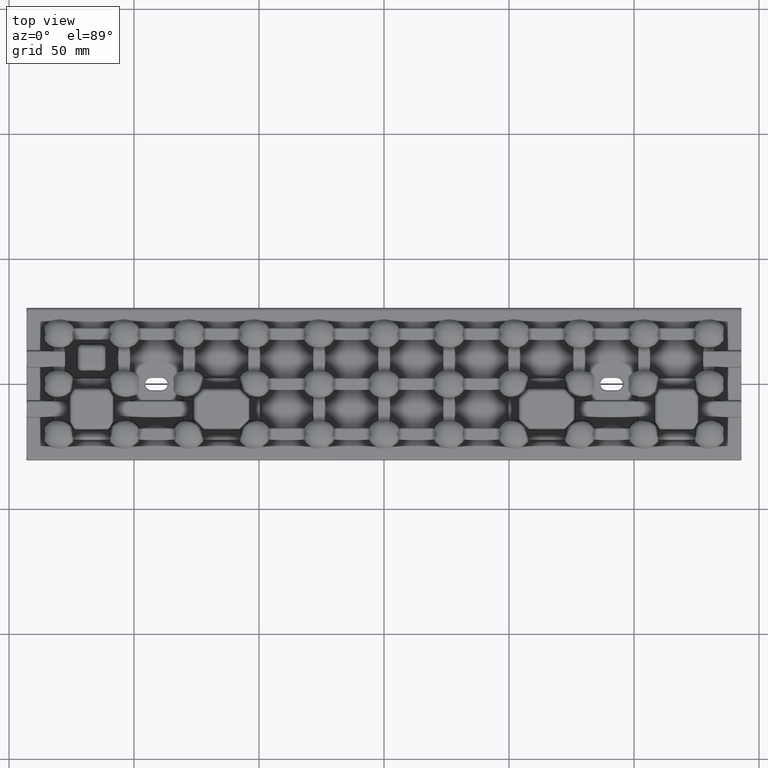
[diagram: clean part render]
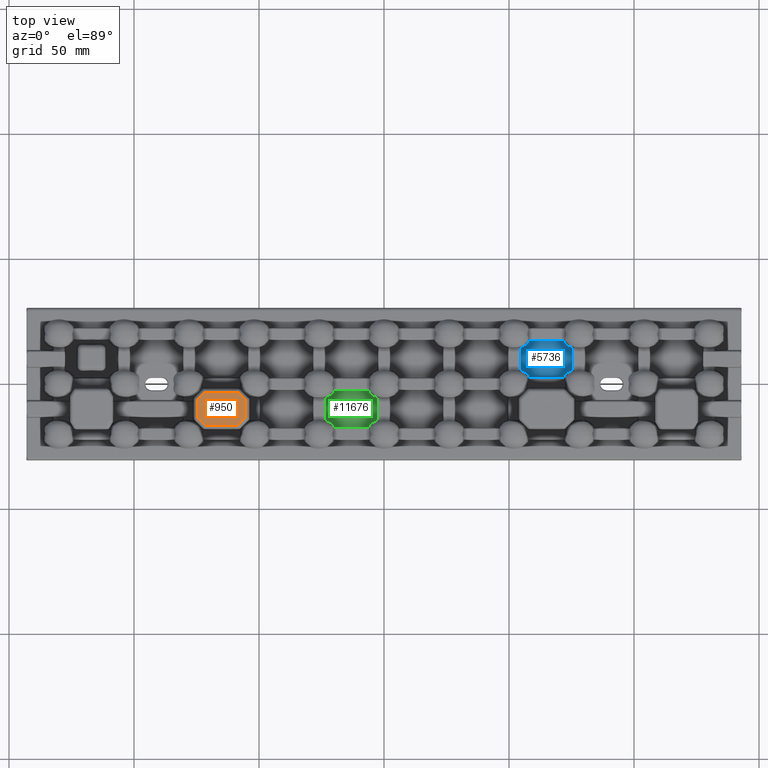
[diagram: same view with three faces highlighted in distinct colors, each labeled with its STEP entity id]
A machine part, top view with three faces highlighted in distinct colors.
Their STEP definitions:

[orange] entity #950 — the highlighted planar face has unit normal (0, 0, -1).
#950 = ADVANCED_FACE ( 'NONE', ( #42815 ), #17824, .F. ) ;
#2049 = VERTEX_POINT ( 'NONE', #28441 ) ;
#5314 = AXIS2_PLACEMENT_3D ( 'NONE', #14093, #11656, #11403 ) ;
#6236 = CARTESIAN_POINT ( 'NONE',  ( -74.54232708441645600, -5.875331438828238700, 6.799999999999999800 ) ) ;
#11403 = DIRECTION ( 'NONE',  ( 1.000000000000000000, 0.0000000000000000000, 0.0000000000000000000 ) ) ;
#11656 = DIRECTION ( 'NONE',  ( 0.0000000000000000000, 0.0000000000000000000, -1.000000000000000000 ) ) ;
#13331 = VECTOR ( 'NONE', #18739, 1000.000000000000000 ) ;
#14093 = CARTESIAN_POINT ( 'NONE',  ( 0.0000000000000000000, 0.0000000000000000000, 6.799999999999999800 ) ) ;
#14114 = LINE ( 'NONE', #33924, #25705 ) ;
#15663 = EDGE_CURVE ( 'NONE', #42154, #52542, #29440, .T. ) ;
#15956 = EDGE_CURVE ( 'NONE', #56035, #42154, #62368, .T. ) ;
#16195 = EDGE_CURVE ( 'NONE', #65048, #56035, #58824, .T. ) ;
#16476 = EDGE_CURVE ( 'NONE', #55022, #65048, #32904, .T. ) ;
#16637 = ORIENTED_EDGE ( 'NONE', *, *, #15663, .F. ) ;
#16714 = EDGE_CURVE ( 'NONE', #72476, #55022, #56081, .T. ) ;
#17045 = EDGE_CURVE ( 'NONE', #34947, #72476, #58758, .T. ) ;
#17340 = EDGE_CURVE ( 'NONE', #2049, #34947, #32833, .T. ) ;
#17575 = CARTESIAN_POINT ( 'NONE',  ( -74.91097697223750600, -13.23466900222692600, 6.799999999999999800 ) ) ;
#17588 = EDGE_CURVE ( 'NONE', #52542, #2049, #14114, .T. ) ;
#17824 = PLANE ( 'NONE',  #5314 ) ;
#18739 = DIRECTION ( 'NONE',  ( -1.000000000000000000, -0.0000000000000000000, -0.0000000000000000000 ) ) ;
#23349 = DIRECTION ( 'NONE',  ( -0.7071067811865459100, 0.7071067811865491300, -0.0000000000000000000 ) ) ;
#25705 = VECTOR ( 'NONE', #39661, 1000.000000000000100 ) ;
#25775 = VECTOR ( 'NONE', #65746, 1000.000000000000000 ) ;
#26052 = DIRECTION ( 'NONE',  ( 1.000000000000000000, 2.845181998947741900E-017, -0.0000000000000000000 ) ) ;
#28441 = CARTESIAN_POINT ( 'NONE',  ( -71.60331889004785900, -3.457672915583494900, 6.799999999999999800 ) ) ;
#29112 = CARTESIAN_POINT ( 'NONE',  ( -74.54232708441645600, -13.60331889004798000, 6.799999999999999800 ) ) ;
#29440 = LINE ( 'NONE', #6236, #73068 ) ;
#30837 = CARTESIAN_POINT ( 'NONE',  ( -58.39668110995199900, -3.457672915583494400, 6.799999999999999800 ) ) ;
#31075 = ORIENTED_EDGE ( 'NONE', *, *, #17045, .F. ) ;
#32833 = LINE ( 'NONE', #37480, #48037 ) ;
#32904 = LINE ( 'NONE', #66800, #61460 ) ;
#33703 = ORIENTED_EDGE ( 'NONE', *, *, #17588, .F. ) ;
#33924 = CARTESIAN_POINT ( 'NONE',  ( -71.23466900222682300, -3.089023027762459500, 6.799999999999999800 ) ) ;
#34947 = VERTEX_POINT ( 'NONE', #30837 ) ;
#37480 = CARTESIAN_POINT ( 'NONE',  ( -57.87533143882816200, -3.457672915583494400, 6.799999999999999800 ) ) ;
#39661 = DIRECTION ( 'NONE',  ( 0.7071067811865499000, 0.7071067811865452400, -0.0000000000000000000 ) ) ;
#42154 = VERTEX_POINT ( 'NONE', #29112 ) ;
#42379 = CARTESIAN_POINT ( 'NONE',  ( -74.54232708441645600, -6.396681109952073300, 6.799999999999999800 ) ) ;
#42815 = FACE_OUTER_BOUND ( 'NONE', #50531, .T. ) ;
#43577 = VECTOR ( 'NONE', #68397, 1000.000000000000200 ) ;
#44415 = ORIENTED_EDGE ( 'NONE', *, *, #16714, .F. ) ;
#47079 = ORIENTED_EDGE ( 'NONE', *, *, #16476, .F. ) ;
#47226 = VECTOR ( 'NONE', #23349, 1000.000000000000100 ) ;
#48037 = VECTOR ( 'NONE', #26052, 1000.000000000000000 ) ;
#50531 = EDGE_LOOP ( 'NONE', ( #16637, #52390, #56849, #47079, #44415, #31075, #51594, #33703 ) ) ;
#51168 = CARTESIAN_POINT ( 'NONE',  ( -71.60331889004788800, -16.54232708441655900, 6.799999999999999800 ) ) ;
#51191 = CARTESIAN_POINT ( 'NONE',  ( -72.12466856117171700, -16.54232708441655900, 6.799999999999999800 ) ) ;
#51594 = ORIENTED_EDGE ( 'NONE', *, *, #17340, .F. ) ;
#52184 = CARTESIAN_POINT ( 'NONE',  ( -55.45767291558339500, -6.396681109952082200, 6.799999999999999800 ) ) ;
#52390 = ORIENTED_EDGE ( 'NONE', *, *, #15956, .F. ) ;
#52542 = VERTEX_POINT ( 'NONE', #42379 ) ;
#54301 = CARTESIAN_POINT ( 'NONE',  ( -55.45767291558339500, -14.12466856117179500, 6.799999999999999800 ) ) ;
#55022 = VERTEX_POINT ( 'NONE', #68371 ) ;
#55354 = DIRECTION ( 'NONE',  ( -0.7071067811865461300, -0.7071067811865489100, -0.0000000000000000000 ) ) ;
#56035 = VERTEX_POINT ( 'NONE', #51168 ) ;
#56081 = LINE ( 'NONE', #54301, #25775 ) ;
#56849 = ORIENTED_EDGE ( 'NONE', *, *, #16195, .F. ) ;
#57562 = DIRECTION ( 'NONE',  ( -0.0000000000000000000, 1.000000000000000000, -0.0000000000000000000 ) ) ;
#58758 = LINE ( 'NONE', #62714, #43577 ) ;
#58824 = LINE ( 'NONE', #51191, #13331 ) ;
#61460 = VECTOR ( 'NONE', #55354, 1000.000000000000100 ) ;
#62368 = LINE ( 'NONE', #17575, #47226 ) ;
#62714 = CARTESIAN_POINT ( 'NONE',  ( -55.08902302776235200, -6.765330997773125100, 6.799999999999999800 ) ) ;
#65048 = VERTEX_POINT ( 'NONE', #65216 ) ;
#65216 = CARTESIAN_POINT ( 'NONE',  ( -58.39668110995197700, -16.54232708441655900, 6.799999999999999800 ) ) ;
#65746 = DIRECTION ( 'NONE',  ( -0.0000000000000000000, -1.000000000000000000, -0.0000000000000000000 ) ) ;
#66800 = CARTESIAN_POINT ( 'NONE',  ( -58.76533099777302000, -16.91097697223760600, 6.799999999999999800 ) ) ;
#68371 = CARTESIAN_POINT ( 'NONE',  ( -55.45767291558339500, -13.60331889004796200, 6.799999999999999800 ) ) ;
#68397 = DIRECTION ( 'NONE',  ( 0.7071067811865494600, -0.7071067811865455700, -0.0000000000000000000 ) ) ;
#72476 = VERTEX_POINT ( 'NONE', #52184 ) ;
#73068 = VECTOR ( 'NONE', #57562, 1000.000000000000000 ) ;

[blue] entity #5736 — the highlighted planar face has unit normal (-0, 0, 1).
#2828 = CARTESIAN_POINT ( 'NONE',  ( 57.79501201246347400, 16.58190241218923300, 1.999999999999996200 ) ) ;
#2876 = B_SPLINE_CURVE_WITH_KNOTS ( 'NONE', 3,
 ( #49432, #43693, #48704, #15280, #55148, #20983, #60904, #26739, #66597, #32470, #72335, #38162 ),
 .UNSPECIFIED., .F., .F.,
 ( 4, 2, 2, 2, 2, 4 ),
 ( 8.673617379884035500E-019, 0.0005610143110296260800, 0.001122028622059251300, 0.002244057244118502600, 0.003366085866177753700, 0.004488114488237005200 ),
 .UNSPECIFIED. ) ;
#3063 = CARTESIAN_POINT ( 'NONE',  ( 74.90037997864989400, 5.346642629162636800, 1.999999999999999600 ) ) ;
#3302 = CARTESIAN_POINT ( 'NONE',  ( 71.93665489542193800, 2.921272174014335000, 1.999999999999999600 ) ) ;
#3447 = CARTESIAN_POINT ( 'NONE',  ( 72.54772348950085400, 16.14509560246113300, 2.000000000000021300 ) ) ;
#5736 = ADVANCED_FACE ( 'NONE', ( #69156 ), #36408, .T. ) ;
#6285 = ORIENTED_EDGE ( 'NONE', *, *, #27910, .T. ) ;
#7150 = VECTOR ( 'NONE', #38077, 1000.000000000000000 ) ;
#8273 = CARTESIAN_POINT ( 'NONE',  ( 55.09960658913112800, 14.65335309428692100, 1.999999999999999600 ) ) ;
#8518 = CARTESIAN_POINT ( 'NONE',  ( 58.06336189217307000, 17.07877684787494500, 2.000000000000001800 ) ) ;
#8744 = CARTESIAN_POINT ( 'NONE',  ( 74.55362577035887700, 5.210396475648687800, 2.000000000000003600 ) ) ;
#9160 = CARTESIAN_POINT ( 'NONE',  ( 72.95393234875425000, 15.75530069695253000, 2.000000000000604400 ) ) ;
#9649 = CARTESIAN_POINT ( 'NONE',  ( 71.87528341715064100, 17.25857780629788300, 2.000000000000000000 ) ) ;
#10721 = LINE ( 'NONE', #26656, #7150 ) ;
#11557 = VECTOR ( 'NONE', #42204, 1000.000000000000000 ) ;
#14473 = CARTESIAN_POINT ( 'NONE',  ( 73.88620459317856200, 4.887762336800744100, 2.000000000000003100 ) ) ;
#14867 = CARTESIAN_POINT ( 'NONE',  ( 73.55062361644014900, 15.30768202563243600, 1.999999999999999100 ) ) ;
#15280 = CARTESIAN_POINT ( 'NONE',  ( 57.79711260354869800, 3.414774147119526800, 1.999999999999997800 ) ) ;
#16033 = ORIENTED_EDGE ( 'NONE', *, *, #27581, .F. ) ;
#16864 = DIRECTION ( 'NONE',  ( 0.0000000000000000000, 1.000000000000000000, -0.0000000000000000000 ) ) ;
#17447 = CARTESIAN_POINT ( 'NONE',  ( 54.74142219370168000, 14.53910680610567700, 2.000000000000000000 ) ) ;
#17830 = AXIS2_PLACEMENT_3D ( 'NONE', #41196, #35421, #34666 ) ;
#18753 = ORIENTED_EDGE ( 'NONE', *, *, #28113, .F. ) ;
#19685 = CARTESIAN_POINT ( 'NONE',  ( 56.11403311489184600, 15.11236120509380700, 2.000000000000001300 ) ) ;
#20148 = CARTESIAN_POINT ( 'NONE',  ( 73.11062102002293300, 4.371657058148595200, 2.000000000000000000 ) ) ;
#20372 = LINE ( 'NONE', #47561, #65099 ) ;
#20560 = CARTESIAN_POINT ( 'NONE',  ( 74.55163707640313900, 14.79023344848447900, 2.000000000000000000 ) ) ;
#20983 = CARTESIAN_POINT ( 'NONE',  ( 57.32786717274973400, 4.004861593216120700, 2.000000000000014200 ) ) ;
#21375 = VERTEX_POINT ( 'NONE', #17447 ) ;
#23128 = ORIENTED_EDGE ( 'NONE', *, *, #26276, .F. ) ;
#24762 = CARTESIAN_POINT ( 'NONE',  ( 58.12471664366866300, 17.25857780629786800, 2.000000000000000000 ) ) ;
#25448 = CARTESIAN_POINT ( 'NONE',  ( 56.89008342987786200, 15.62888595811224400, 2.000000000000000000 ) ) ;
#25936 = CARTESIAN_POINT ( 'NONE',  ( 72.68537160262494000, 3.998077177243522000, 1.999999999999600500 ) ) ;
#26276 = EDGE_CURVE ( 'NONE', #63269, #41577, #65422, .T. ) ;
#26339 = CARTESIAN_POINT ( 'NONE',  ( 75.25857780629814900, 14.53910680023599900, 2.000000000000000000 ) ) ;
#26604 = EDGE_CURVE ( 'NONE', #63269, #67445, #49967, .T. ) ;
#26656 = CARTESIAN_POINT ( 'NONE',  ( 73.61223291411209900, 2.741422193701760900, 2.000000000000000000 ) ) ;
#26739 = CARTESIAN_POINT ( 'NONE',  ( 56.44316856757350100, 4.696417050458721900, 1.999999999999981300 ) ) ;
#26940 = EDGE_CURVE ( 'NONE', #26996, #67445, #35705, .T. ) ;
#26996 = VERTEX_POINT ( 'NONE', #9649 ) ;
#27253 = EDGE_CURVE ( 'NONE', #26996, #72596, #41880, .T. ) ;
#27581 = EDGE_CURVE ( 'NONE', #21375, #72596, #66767, .T. ) ;
#27910 = EDGE_CURVE ( 'NONE', #21375, #46031, #20372, .T. ) ;
#28113 = EDGE_CURVE ( 'NONE', #68467, #46031, #2876, .T. ) ;
#28447 = EDGE_CURVE ( 'NONE', #68467, #41577, #10721, .T. ) ;
#29459 = ORIENTED_EDGE ( 'NONE', *, *, #27253, .T. ) ;
#31193 = CARTESIAN_POINT ( 'NONE',  ( 57.31500584046109700, 16.00230770594036800, 1.999999999999085000 ) ) ;
#31679 = CARTESIAN_POINT ( 'NONE',  ( 72.31559820724579900, 3.574081393938444600, 2.000000000000089700 ) ) ;
#32470 = CARTESIAN_POINT ( 'NONE',  ( 55.44716140462983800, 5.210168295954024300, 1.999999999999998700 ) ) ;
#33802 = CARTESIAN_POINT ( 'NONE',  ( 75.25857780629814900, 15.61223291411225100, 2.000000000000000000 ) ) ;
#34593 = EDGE_LOOP ( 'NONE', ( #23128, #67694, #39173, #29459, #16033, #6285, #18753, #67763 ) ) ;
#34666 = DIRECTION ( 'NONE',  ( 1.000000000000000000, 0.0000000000000000000, 0.0000000000000000000 ) ) ;
#34789 = CARTESIAN_POINT ( 'NONE',  ( 58.12471664366873400, 2.741422193701762200, 2.000000000000000000 ) ) ;
#35421 = DIRECTION ( 'NONE',  ( -0.0000000000000000000, 0.0000000000000000000, 1.000000000000000000 ) ) ;
#35705 = B_SPLINE_CURVE_WITH_KNOTS ( 'NONE', 3,
 ( #48532, #37522, #71661, #3447, #43276, #9160, #49014, #14867, #54755, #20560, #60496, #26339 ),
 .UNSPECIFIED., .F., .F.,
 ( 4, 2, 2, 2, 2, 4 ),
 ( 3.469446951953614200E-018, 0.001114944841971943900, 0.001672417262957927200, 0.002229889683943910700, 0.003344834525915880800, 0.004459779367887850900 ),
 .UNSPECIFIED. ) ;
#36408 = PLANE ( 'NONE',  #17830 ) ;
#36877 = CARTESIAN_POINT ( 'NONE',  ( 57.68470931873402200, 16.42632786501944500, 2.000000000000066600 ) ) ;
#37362 = CARTESIAN_POINT ( 'NONE',  ( 72.01599760934018900, 3.092145851144529400, 1.999999999999998700 ) ) ;
#37522 = CARTESIAN_POINT ( 'NONE',  ( 71.99803419202373800, 16.89885493394610800, 2.000000000000000000 ) ) ;
#38077 = DIRECTION ( 'NONE',  ( 1.000000000000000000, -8.260587980841932600E-017, 0.0000000000000000000 ) ) ;
#38162 = CARTESIAN_POINT ( 'NONE',  ( 54.74142219370168000, 5.460893193894282400, 2.000000000000000000 ) ) ;
#39173 = ORIENTED_EDGE ( 'NONE', *, *, #26940, .F. ) ;
#41196 = CARTESIAN_POINT ( 'NONE',  ( 0.0000000000000000000, 0.0000000000000000000, 2.000000000000000000 ) ) ;
#41577 = VERTEX_POINT ( 'NONE', #57873 ) ;
#41880 = LINE ( 'NONE', #59187, #11557 ) ;
#42204 = DIRECTION ( 'NONE',  ( -1.000000000000000000, -1.156482317317870500E-015, 0.0000000000000000000 ) ) ;
#42584 = CARTESIAN_POINT ( 'NONE',  ( 75.25857780629814900, 5.460893199763967600, 2.000000000000000000 ) ) ;
#42636 = CARTESIAN_POINT ( 'NONE',  ( 57.98407401550316800, 16.90802450039241800, 1.999999999999995300 ) ) ;
#43123 = CARTESIAN_POINT ( 'NONE',  ( 71.87528341715052700, 2.741422193701760900, 2.000000000000000000 ) ) ;
#43276 = CARTESIAN_POINT ( 'NONE',  ( 72.67899717475180000, 16.00835536796487100, 2.000000000000604800 ) ) ;
#43693 = CARTESIAN_POINT ( 'NONE',  ( 58.06343828802858600, 2.920999273000661300, 2.000000000000001300 ) ) ;
#46031 = VERTEX_POINT ( 'NONE', #57913 ) ;
#47561 = CARTESIAN_POINT ( 'NONE',  ( 54.74142219370168000, 4.387767085887761100, 2.000000000000000000 ) ) ;
#48143 = CARTESIAN_POINT ( 'NONE',  ( 54.74142219370168000, 14.53910680610567700, 2.000000000000000000 ) ) ;
#48379 = CARTESIAN_POINT ( 'NONE',  ( 58.12471664366866300, 17.25857780629786800, 2.000000000000000000 ) ) ;
#48532 = CARTESIAN_POINT ( 'NONE',  ( 71.87528341715064100, 17.25857780629788300, 2.000000000000000000 ) ) ;
#48617 = CARTESIAN_POINT ( 'NONE',  ( 75.25857780629814900, 5.460893199763967600, 2.000000000000000000 ) ) ;
#48704 = CARTESIAN_POINT ( 'NONE',  ( 57.98449328760512600, 3.090948249939440700, 1.999999999999998700 ) ) ;
#49014 = CARTESIAN_POINT ( 'NONE',  ( 73.09860470962300400, 15.63777386931147000, 1.999999999999998200 ) ) ;
#49432 = CARTESIAN_POINT ( 'NONE',  ( 58.12471664366873400, 2.741422193701762200, 2.000000000000000000 ) ) ;
#49967 = LINE ( 'NONE', #33802, #53537 ) ;
#53537 = VECTOR ( 'NONE', #16864, 1000.000000000000000 ) ;
#53846 = CARTESIAN_POINT ( 'NONE',  ( 55.44640795026975900, 14.78961119562334800, 2.000000000000001300 ) ) ;
#54340 = CARTESIAN_POINT ( 'NONE',  ( 73.56537355590028000, 4.701689704480576100, 1.999999999999999600 ) ) ;
#54755 = CARTESIAN_POINT ( 'NONE',  ( 73.87780439658136800, 15.11663491878729500, 2.000000000000000400 ) ) ;
#55148 = CARTESIAN_POINT ( 'NONE',  ( 57.68766890327619000, 3.569745612315535800, 2.000000000000013800 ) ) ;
#57873 = CARTESIAN_POINT ( 'NONE',  ( 71.87528341715052700, 2.741422193701760900, 2.000000000000000000 ) ) ;
#57913 = CARTESIAN_POINT ( 'NONE',  ( 54.74142219370168000, 5.460893193894282400, 2.000000000000000000 ) ) ;
#59187 = CARTESIAN_POINT ( 'NONE',  ( 56.38776708588749600, 17.25857780629786500, 2.000000000000000000 ) ) ;
#59624 = CARTESIAN_POINT ( 'NONE',  ( 56.43502197326501600, 15.29853394021126300, 1.999999999999999600 ) ) ;
#59977 = CARTESIAN_POINT ( 'NONE',  ( 75.25857780629814900, 14.53910680023599900, 2.000000000000000000 ) ) ;
#60087 = CARTESIAN_POINT ( 'NONE',  ( 72.96272174898999200, 4.252191948901840500, 1.999999999999600500 ) ) ;
#60496 = CARTESIAN_POINT ( 'NONE',  ( 74.90016230161610600, 14.65342680097733000, 1.999999999999999600 ) ) ;
#60904 = CARTESIAN_POINT ( 'NONE',  ( 57.05017700651637100, 4.254005156543654700, 1.999999999999981300 ) ) ;
#63269 = VERTEX_POINT ( 'NONE', #42584 ) ;
#65099 = VECTOR ( 'NONE', #70446, 1000.000000000000000 ) ;
#65298 = CARTESIAN_POINT ( 'NONE',  ( 57.03792449826416800, 15.74836117042492300, 1.999999999999085400 ) ) ;
#65422 = B_SPLINE_CURVE_WITH_KNOTS ( 'NONE', 3,
 ( #48617, #3063, #8744, #14473, #54340, #20148, #60087, #25936, #65779, #31679, #71509, #37362, #3302, #43123 ),
 .UNSPECIFIED., .F., .F.,
 ( 4, 2, 2, 2, 2, 2, 4 ),
 ( 1.592264493058081600E-017, 0.001111486230891782500, 0.002222972461783549500, 0.002778715577229432800, 0.003334458692675316200, 0.003890201808121199500, 0.004445944923567082500 ),
 .UNSPECIFIED. ) ;
#65779 = CARTESIAN_POINT ( 'NONE',  ( 72.55524195587833000, 3.863107754414373500, 2.000000000000090200 ) ) ;
#66597 = CARTESIAN_POINT ( 'NONE',  ( 56.11778976680386000, 4.885678013079544100, 1.999999999999998700 ) ) ;
#66767 = B_SPLINE_CURVE_WITH_KNOTS ( 'NONE', 3,
 ( #48143, #8273, #53846, #19685, #59624, #25448, #65298, #31193, #71014, #36877, #2828, #42636, #8518, #48379 ),
 .UNSPECIFIED., .F., .F.,
 ( 4, 2, 2, 2, 2, 2, 4 ),
 ( 0.0000000000000000000, 0.001111915370787457800, 0.002223830741574915600, 0.002779788426968644500, 0.003335746112362373400, 0.003891703797756102300, 0.004447661483149831200 ),
 .UNSPECIFIED. ) ;
#67445 = VERTEX_POINT ( 'NONE', #59977 ) ;
#67694 = ORIENTED_EDGE ( 'NONE', *, *, #26604, .T. ) ;
#67763 = ORIENTED_EDGE ( 'NONE', *, *, #28447, .T. ) ;
#68467 = VERTEX_POINT ( 'NONE', #34789 ) ;
#69156 = FACE_OUTER_BOUND ( 'NONE', #34593, .T. ) ;
#70446 = DIRECTION ( 'NONE',  ( 0.0000000000000000000, -1.000000000000000000, 0.0000000000000000000 ) ) ;
#71014 = CARTESIAN_POINT ( 'NONE',  ( 57.44507333174973200, 16.13723412517454400, 2.000000000000066600 ) ) ;
#71509 = CARTESIAN_POINT ( 'NONE',  ( 72.20530534545021300, 3.418597923065645400, 1.999999999999998700 ) ) ;
#71661 = CARTESIAN_POINT ( 'NONE',  ( 72.18921699528685600, 16.58015194439517300, 2.000000000000021300 ) ) ;
#72335 = CARTESIAN_POINT ( 'NONE',  ( 55.09958599592879800, 5.346653474108982200, 1.999999999999999600 ) ) ;
#72596 = VERTEX_POINT ( 'NONE', #24762 ) ;

[green] entity #11676 — the highlighted planar face has unit normal (0, 0, 1).
#330 = FACE_OUTER_BOUND ( 'NONE', #69805, .T. ) ;
#334 = VERTEX_POINT ( 'NONE', #36562 ) ;
#398 = CARTESIAN_POINT ( 'NONE',  ( 0.0000000000000000000, 0.0000000000000000000, 2.000000000000000000 ) ) ;
#1146 = B_SPLINE_CURVE_WITH_KNOTS ( 'NONE', 3,
 ( #38448, #15549, #10091, #49959, #15787, #55676, #21517, #61418, #27269, #67106, #32975, #72839 ),
 .UNSPECIFIED., .F., .F.,
 ( 4, 2, 2, 2, 2, 4 ),
 ( 1.792839020349697500E-017, 0.001114944841972084600, 0.001672417262958117300, 0.002229889683944149700, 0.003344834525916217300, 0.004459779367888286300 ),
 .UNSPECIFIED. ) ;
#1726 = LINE ( 'NONE', #4060, #16775 ) ;
#2562 = CARTESIAN_POINT ( 'NONE',  ( -4.113795406823469700, -15.11223766320038900, 2.000000000000001800 ) ) ;
#2910 = CARTESIAN_POINT ( 'NONE',  ( -23.25857780629830900, -14.53910680610573900, 2.000000000000000000 ) ) ;
#3064 = CARTESIAN_POINT ( 'NONE',  ( -19.87528335633127000, -17.25857780629830200, 2.000000000000000000 ) ) ;
#3076 = CARTESIAN_POINT ( 'NONE',  ( -2.741422193701767500, -4.387767085887722900, 2.000000000000000000 ) ) ;
#3921 = VERTEX_POINT ( 'NONE', #53610 ) ;
#4060 = CARTESIAN_POINT ( 'NONE',  ( -4.387767085887806400, -17.25857780629830500, 2.000000000000000000 ) ) ;
#4287 = CARTESIAN_POINT ( 'NONE',  ( -20.31529068126582200, -3.573672134980299600, 2.000000000000066200 ) ) ;
#6824 = CARTESIAN_POINT ( 'NONE',  ( -21.61223291411214500, -2.741422193701764000, 2.000000000000000000 ) ) ;
#8279 = CARTESIAN_POINT ( 'NONE',  ( -4.889378979978321400, -15.62834294185235600, 1.999999999999999100 ) ) ;
#9843 = VECTOR ( 'NONE', #31696, 1000.000000000000000 ) ;
#10015 = CARTESIAN_POINT ( 'NONE',  ( -20.01592598449671100, -3.091975499607265000, 1.999999999999994900 ) ) ;
#10091 = CARTESIAN_POINT ( 'NONE',  ( -5.810783004713311300, -3.419848055604597400, 2.000000000000021300 ) ) ;
#10214 = B_SPLINE_CURVE_WITH_KNOTS ( 'NONE', 3,
 ( #15468, #49629, #21184, #61094, #26938, #66784, #32659, #72529, #38356, #4287, #44130, #10015, #49873, #15709 ),
 .UNSPECIFIED., .F., .F.,
 ( 4, 2, 2, 2, 2, 2, 4 ),
 ( 8.673617379884035500E-019, 0.001111915370787546100, 0.002223830741575091300, 0.002779788426968858800, 0.003335746112362626300, 0.003891703797756394200, 0.004447661483150161700 ),
 .UNSPECIFIED. ) ;
#10736 = CARTESIAN_POINT ( 'NONE',  ( -23.25857780629830900, -15.61223291411218700, 2.000000000000000000 ) ) ;
#11676 = ADVANCED_FACE ( 'NONE', ( #330 ), #23292, .T. ) ;
#12120 = CARTESIAN_POINT ( 'NONE',  ( -23.25857780629830900, -5.460893193894306400, 2.000000000000000000 ) ) ;
#12506 = ORIENTED_EDGE ( 'NONE', *, *, #51239, .F. ) ;
#12545 = DIRECTION ( 'NONE',  ( -1.000000000000000000, 2.891205793294668500E-016, -0.0000000000000000000 ) ) ;
#13985 = CARTESIAN_POINT ( 'NONE',  ( -5.314628397375886800, -16.00192282275729000, 1.999999999999600500 ) ) ;
#14064 = CARTESIAN_POINT ( 'NONE',  ( -20.01550671239736100, -16.90905175005574200, 2.000000000000000000 ) ) ;
#15468 = CARTESIAN_POINT ( 'NONE',  ( -23.25857780629830900, -5.460893193894306400, 2.000000000000000000 ) ) ;
#15549 = CARTESIAN_POINT ( 'NONE',  ( -6.001965807976449500, -3.101145066053587300, 1.999999999999999600 ) ) ;
#15709 = CARTESIAN_POINT ( 'NONE',  ( -19.87528335633126300, -2.741422193701764400, 2.000000000000000000 ) ) ;
#15787 = CARTESIAN_POINT ( 'NONE',  ( -5.321002825248373600, -3.991644632034979900, 2.000000000000606200 ) ) ;
#16775 = VECTOR ( 'NONE', #55356, 1000.000000000000000 ) ;
#19689 = CARTESIAN_POINT ( 'NONE',  ( -5.684401792754670200, -16.42591860606216200, 2.000000000000089300 ) ) ;
#19767 = CARTESIAN_POINT ( 'NONE',  ( -20.31233109672653500, -16.43025438768087900, 2.000000000000012900 ) ) ;
#19829 = VERTEX_POINT ( 'NONE', #12120 ) ;
#21184 = CARTESIAN_POINT ( 'NONE',  ( -22.55359204973016000, -5.210388804376619600, 2.000000000000003100 ) ) ;
#21517 = CARTESIAN_POINT ( 'NONE',  ( -4.901395290377147200, -4.362226130688445600, 1.999999999999999100 ) ) ;
#22156 = DIRECTION ( 'NONE',  ( -0.0000000000000000000, -1.000000000000000000, 0.0000000000000000000 ) ) ;
#22238 = CARTESIAN_POINT ( 'NONE',  ( -2.741422193701769800, -14.53910680023599700, 2.000000000000000000 ) ) ;
#23292 = PLANE ( 'NONE',  #70334 ) ;
#25000 = LINE ( 'NONE', #3076, #9843 ) ;
#25455 = CARTESIAN_POINT ( 'NONE',  ( -5.984002390659978400, -16.90785414885577600, 1.999999999999998700 ) ) ;
#25533 = CARTESIAN_POINT ( 'NONE',  ( -20.94982299348616600, -15.74599484345427800, 1.999999999999979100 ) ) ;
#25832 = B_SPLINE_CURVE_WITH_KNOTS ( 'NONE', 3,
 ( #30957, #65046, #36646, #2562, #42391, #8279, #48145, #13985, #53852, #19689, #59628, #25455, #65305, #31195 ),
 .UNSPECIFIED., .F., .F.,
 ( 4, 2, 2, 2, 2, 2, 4 ),
 ( 1.943221769312084200E-015, 0.001111486230892679400, 0.002222972461783415500, 0.002778715577228783600, 0.003334458692674151300, 0.003890201808119519500, 0.004445944923564887200 ),
 .UNSPECIFIED. ) ;
#26938 = CARTESIAN_POINT ( 'NONE',  ( -21.56497802673485600, -4.701466059788646800, 2.000000000000001300 ) ) ;
#27269 = CARTESIAN_POINT ( 'NONE',  ( -4.122195603418699500, -4.883365081212677000, 1.999999999999999100 ) ) ;
#28469 = LINE ( 'NONE', #10736, #41865 ) ;
#29029 = DIRECTION ( 'NONE',  ( -1.000000000000000000, 0.0000000000000000000, 0.0000000000000000000 ) ) ;
#30957 = CARTESIAN_POINT ( 'NONE',  ( -2.741422193701769800, -14.53910680023599700, 2.000000000000000000 ) ) ;
#31195 = CARTESIAN_POINT ( 'NONE',  ( -6.124716582849506700, -17.25857780629830500, 2.000000000000000000 ) ) ;
#31275 = CARTESIAN_POINT ( 'NONE',  ( -21.88221023319778500, -15.11432198691960900, 2.000000000000000400 ) ) ;
#31696 = DIRECTION ( 'NONE',  ( 2.023844055306265400E-016, 1.000000000000000000, -0.0000000000000000000 ) ) ;
#32659 = CARTESIAN_POINT ( 'NONE',  ( -20.96207550173567900, -4.251638829574924100, 1.999999999999082300 ) ) ;
#32975 = CARTESIAN_POINT ( 'NONE',  ( -3.099837698383867600, -5.346573199022681200, 2.000000000000000000 ) ) ;
#33734 = ORIENTED_EDGE ( 'NONE', *, *, #49706, .T. ) ;
#36562 = CARTESIAN_POINT ( 'NONE',  ( -6.124716582849506700, -17.25857780629830500, 2.000000000000000000 ) ) ;
#36646 = CARTESIAN_POINT ( 'NONE',  ( -3.446374229643942100, -14.78960352435251100, 2.000000000000002700 ) ) ;
#36959 = CARTESIAN_POINT ( 'NONE',  ( -22.90041400407166700, -14.65334652589089300, 2.000000000000001300 ) ) ;
#38222 = CARTESIAN_POINT ( 'NONE',  ( -19.87528335633126300, -2.741422193701764400, 2.000000000000000000 ) ) ;
#38356 = CARTESIAN_POINT ( 'NONE',  ( -20.55492666825011800, -3.862765874825242000, 2.000000000000066200 ) ) ;
#38448 = CARTESIAN_POINT ( 'NONE',  ( -6.124716582849451600, -2.741422193701768400, 2.000000000000000000 ) ) ;
#39115 = ORIENTED_EDGE ( 'NONE', *, *, #50049, .F. ) ;
#41865 = VECTOR ( 'NONE', #22156, 1000.000000000000000 ) ;
#42391 = CARTESIAN_POINT ( 'NONE',  ( -4.434626444101394500, -15.29831029552048900, 1.999999999999998700 ) ) ;
#42471 = CARTESIAN_POINT ( 'NONE',  ( -19.87528335633127000, -17.25857780629830200, 2.000000000000000000 ) ) ;
#42739 = ORIENTED_EDGE ( 'NONE', *, *, #50258, .T. ) ;
#43601 = ORIENTED_EDGE ( 'NONE', *, *, #49615, .F. ) ;
#44130 = CARTESIAN_POINT ( 'NONE',  ( -20.20498798753636600, -3.418097587810490900, 1.999999999999994400 ) ) ;
#47252 = ORIENTED_EDGE ( 'NONE', *, *, #50584, .T. ) ;
#48145 = CARTESIAN_POINT ( 'NONE',  ( -5.037278251011096100, -15.74780805109907800, 1.999999999999600100 ) ) ;
#48963 = VERTEX_POINT ( 'NONE', #68234 ) ;
#49615 = EDGE_CURVE ( 'NONE', #72317, #334, #25832, .T. ) ;
#49629 = CARTESIAN_POINT ( 'NONE',  ( -22.90039341086883700, -5.346646905713059900, 2.000000000000000000 ) ) ;
#49706 = EDGE_CURVE ( 'NONE', #72317, #53474, #25000, .T. ) ;
#49873 = CARTESIAN_POINT ( 'NONE',  ( -19.93663810782680200, -2.921223152124724300, 2.000000000000003100 ) ) ;
#49959 = CARTESIAN_POINT ( 'NONE',  ( -5.452276510499312500, -3.854904397538709400, 2.000000000000021300 ) ) ;
#50049 = EDGE_CURVE ( 'NONE', #48963, #53474, #1146, .T. ) ;
#50258 = EDGE_CURVE ( 'NONE', #48963, #57102, #56150, .T. ) ;
#50491 = EDGE_CURVE ( 'NONE', #19829, #57102, #10214, .T. ) ;
#50584 = EDGE_CURVE ( 'NONE', #19829, #3921, #28469, .T. ) ;
#51239 = EDGE_CURVE ( 'NONE', #57697, #3921, #65736, .T. ) ;
#51476 = EDGE_CURVE ( 'NONE', #57697, #334, #1726, .T. ) ;
#53474 = VERTEX_POINT ( 'NONE', #71202 ) ;
#53610 = CARTESIAN_POINT ( 'NONE',  ( -23.25857780629830900, -14.53910680610573900, 2.000000000000000000 ) ) ;
#53852 = CARTESIAN_POINT ( 'NONE',  ( -5.444758044122386000, -16.13689224558639200, 2.000000000000089700 ) ) ;
#53931 = CARTESIAN_POINT ( 'NONE',  ( -20.20288739645397800, -16.58522585287654400, 2.000000000000000900 ) ) ;
#55246 = ORIENTED_EDGE ( 'NONE', *, *, #50491, .F. ) ;
#55356 = DIRECTION ( 'NONE',  ( 1.000000000000000000, -1.652117596168382100E-016, -0.0000000000000000000 ) ) ;
#55676 = CARTESIAN_POINT ( 'NONE',  ( -5.046067651245893500, -4.244699303047351400, 2.000000000000606200 ) ) ;
#56150 = LINE ( 'NONE', #6824, #65941 ) ;
#57102 = VERTEX_POINT ( 'NONE', #38222 ) ;
#57697 = VERTEX_POINT ( 'NONE', #3064 ) ;
#59628 = CARTESIAN_POINT ( 'NONE',  ( -5.794694654550125900, -16.58140207693486100, 1.999999999999997800 ) ) ;
#59708 = CARTESIAN_POINT ( 'NONE',  ( -20.67213282725300500, -15.99513840678128100, 2.000000000000012900 ) ) ;
#61094 = CARTESIAN_POINT ( 'NONE',  ( -21.88596688510802900, -4.887638794906114200, 2.000000000000003600 ) ) ;
#61418 = CARTESIAN_POINT ( 'NONE',  ( -4.449376383559958900, -4.692317974367519200, 1.999999999999999600 ) ) ;
#63156 = DIRECTION ( 'NONE',  ( 0.0000000000000000000, 0.0000000000000000000, 1.000000000000000000 ) ) ;
#63330 = ORIENTED_EDGE ( 'NONE', *, *, #51476, .T. ) ;
#65046 = CARTESIAN_POINT ( 'NONE',  ( -3.099620021350327500, -14.65335737084013900, 2.000000000000462700 ) ) ;
#65305 = CARTESIAN_POINT ( 'NONE',  ( -6.063345104578170100, -17.07872782598590400, 2.000000000000000400 ) ) ;
#65383 = CARTESIAN_POINT ( 'NONE',  ( -21.55683143242844900, -15.30358294954010700, 1.999999999999979100 ) ) ;
#65736 = B_SPLINE_CURVE_WITH_KNOTS ( 'NONE', 3,
 ( #42471, #70860, #14064, #53931, #19767, #59708, #25533, #65383, #31275, #71099, #36959, #2910 ),
 .UNSPECIFIED., .F., .F.,
 ( 4, 2, 2, 2, 2, 4 ),
 ( 3.176505583166473500E-015, 0.0005610143110317126300, 0.001122028622060248800, 0.002244057244117314300, 0.003366085866174379200, 0.004488114488231444500 ),
 .UNSPECIFIED. ) ;
#65941 = VECTOR ( 'NONE', #12545, 1000.000000000000000 ) ;
#66784 = CARTESIAN_POINT ( 'NONE',  ( -21.10991657012199600, -4.371114041887618200, 2.000000000000002200 ) ) ;
#67106 = CARTESIAN_POINT ( 'NONE',  ( -3.448362923596881600, -5.209766551515524000, 1.999999999999998700 ) ) ;
#68234 = CARTESIAN_POINT ( 'NONE',  ( -6.124716582849451600, -2.741422193701768400, 2.000000000000000000 ) ) ;
#69805 = EDGE_LOOP ( 'NONE', ( #43601, #33734, #39115, #42739, #55246, #47252, #12506, #63330 ) ) ;
#70334 = AXIS2_PLACEMENT_3D ( 'NONE', #398, #63156, #29029 ) ;
#70860 = CARTESIAN_POINT ( 'NONE',  ( -19.93656171197620700, -17.07900072699892400, 2.000000000001284800 ) ) ;
#71099 = CARTESIAN_POINT ( 'NONE',  ( -22.55283859537104600, -14.78983170404565900, 2.000000000000000000 ) ) ;
#71202 = CARTESIAN_POINT ( 'NONE',  ( -2.741422193701768000, -5.460893199764026200, 2.000000000000000000 ) ) ;
#72317 = VERTEX_POINT ( 'NONE', #22238 ) ;
#72529 = CARTESIAN_POINT ( 'NONE',  ( -20.68499415953875000, -3.997692294059446800, 1.999999999999082300 ) ) ;
#72839 = CARTESIAN_POINT ( 'NONE',  ( -2.741422193701768000, -5.460893199764026200, 2.000000000000000000 ) ) ;